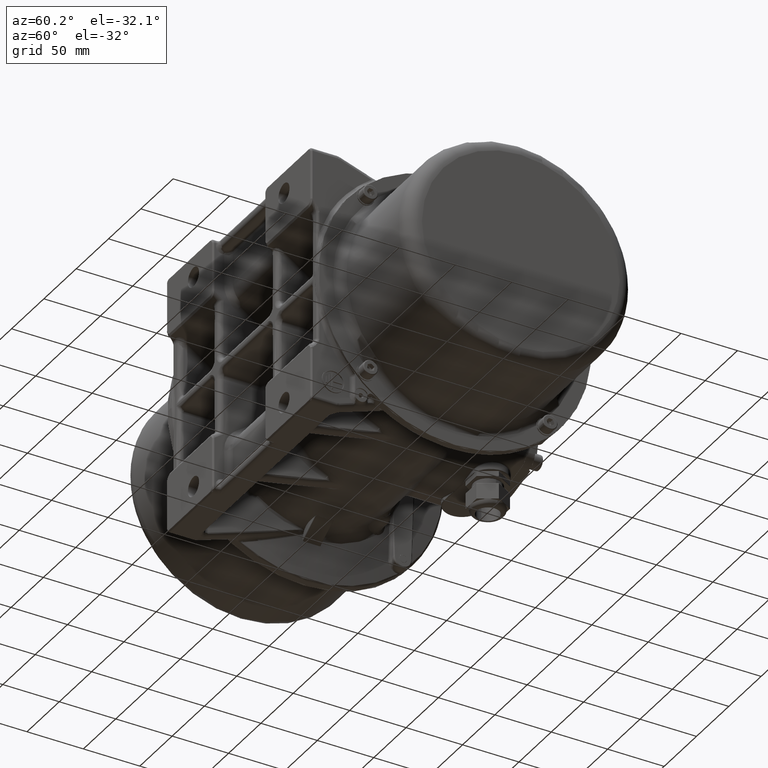
[diagram: clean part render]
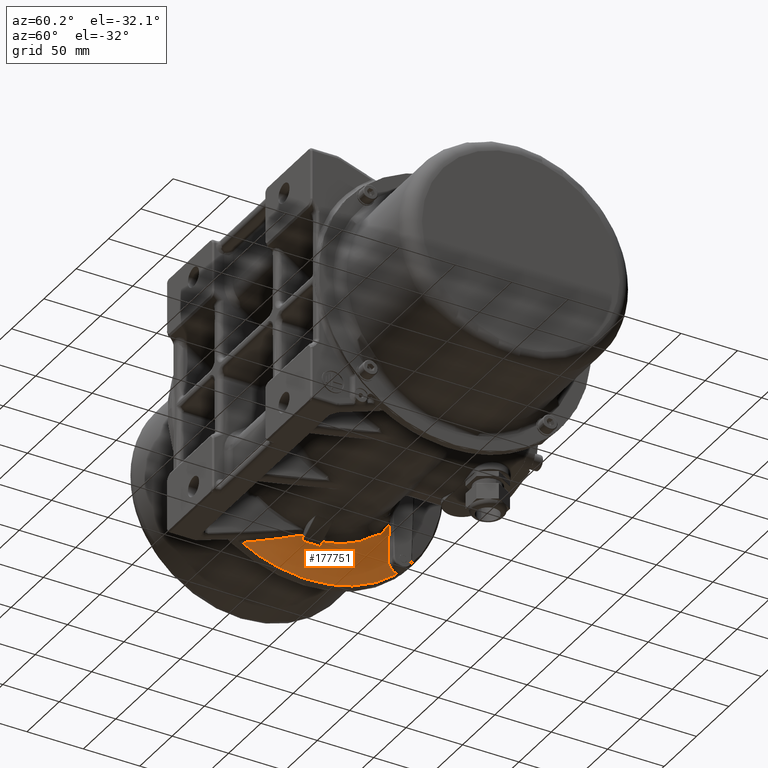
[diagram: same view with one face highlighted and labeled with its STEP entity id]
A machine part, auxiliary view. The second image highlights one B-rep face of the part: STEP entity #177751.
In plain terms, the highlighted face is a freeform B-spline surface patch.
Its self-contained STEP definition (entity closure, byte-faithful):
#8336 = EDGE_LOOP ( 'NONE', ( #71636, #71638, #71641, #71643, #71645, #71647, #71650, #71652, #71655, #71657, #71659, #71661, #71663, #71664, #71667 ) ) ;
#10796 = CARTESIAN_POINT ( 'NONE',  ( -112.7194616825309900, 105.4357422159372000, -79.63656476125009900 ) ) ;
#10804 = CARTESIAN_POINT ( 'NONE',  ( -110.3276151170406100, 104.7622992244428000, -61.27289267360679800 ) ) ;
#10806 = CARTESIAN_POINT ( 'NONE',  ( -109.6903733673840100, 44.20656026137489600, -88.03486446176150100 ) ) ;
#10808 = CARTESIAN_POINT ( 'NONE',  ( -109.9204243931004000, 43.10681717473394800, -89.43783259123048900 ) ) ;
#10810 = CARTESIAN_POINT ( 'NONE',  ( -109.9204417613056000, 29.10952711054559900, -89.43782953803429300 ) ) ;
#10812 = CARTESIAN_POINT ( 'NONE',  ( -109.6903895171706000, 28.00976313468945000, -88.03486141657029400 ) ) ;
#10814 = CARTESIAN_POINT ( 'NONE',  ( -109.2243373458650100, 26.06442259026220000, -85.17337425702939400 ) ) ;
#10816 = CARTESIAN_POINT ( 'NONE',  ( -115.1307563801526000, -22.65200093960800100, -103.7800634287924000 ) ) ;
#10820 = CARTESIAN_POINT ( 'NONE',  ( -113.3124307713246000, -9.157777201190150200, -99.09924855988209900 ) ) ;
#10836 = CARTESIAN_POINT ( 'NONE',  ( -109.2243217054904000, 104.6155208510088000, -51.59551474387139800 ) ) ;
#41219 = B_SPLINE_SURFACE_WITH_KNOTS ( 'NONE', 3, 3, ( 
 ( #155608, #155607, #155402, #155609 ),
 ( #155610, #155611, #155612, #155613 ),
 ( #155614, #155615, #155616, #155617 ),
 ( #155618, #155619, #155620, #155621 ),
 ( #155622, #155623, #155624, #155625 ),
 ( #155626, #155627, #155628, #155629 ),
 ( #155630, #155631, #155632, #155633 ),
 ( #155634, #155635, #155636, #155637 ),
 ( #155638, #155639, #155640, #155641 ),
 ( #155642, #155643, #155644, #155645 ),
 ( #155646, #155647, #155648, #155649 ) ),
 .UNSPECIFIED., .F., .F., .F.,
 ( 4, 1, 1, 1, 1, 1, 1, 1, 4 ),
 ( 4, 4 ),
 ( 0.0000000000000000000, 18.43374009221859900, 36.86748018443719800, 55.30122027665580500, 73.73496036887439700, 92.16870046109301000, 110.6024405533116000, 129.0361806455301800, 147.4699207377489900 ),
 ( 0.0000000000000000000, 34.01372305161260100 ),
 .UNSPECIFIED. ) ;
#43606 = VERTEX_POINT ( 'NONE', #117850 ) ;
#43607 = VERTEX_POINT ( 'NONE', #117851 ) ;
#43618 = VERTEX_POINT ( 'NONE', #117862 ) ;
#43623 = VERTEX_POINT ( 'NONE', #117867 ) ;
#62807 = EDGE_CURVE ( 'NONE', #174095, #43618, #102348, .T. ) ;
#62812 = EDGE_CURVE ( 'NONE', #114705, #174087, #102373, .T. ) ;
#62814 = EDGE_CURVE ( 'NONE', #43606, #174092, #102383, .T. ) ;
#62815 = EDGE_CURVE ( 'NONE', #174087, #174091, #102388, .T. ) ;
#62818 = EDGE_CURVE ( 'NONE', #43623, #43607, #102403, .T. ) ;
#62820 = EDGE_CURVE ( 'NONE', #43607, #43606, #102413, .T. ) ;
#62823 = EDGE_CURVE ( 'NONE', #174092, #174093, #102428, .T. ) ;
#62824 = EDGE_CURVE ( 'NONE', #174094, #174095, #102433, .T. ) ;
#62825 = EDGE_CURVE ( 'NONE', #174093, #174094, #102438, .T. ) ;
#62826 = EDGE_CURVE ( 'NONE', #174099, #174097, #102443, .T. ) ;
#62829 = EDGE_CURVE ( 'NONE', #43618, #174096, #102458, .T. ) ;
#62848 = EDGE_CURVE ( 'NONE', #174107, #43623, #102537, .T. ) ;
#62853 = EDGE_CURVE ( 'NONE', #174091, #174107, #102557, .T. ) ;
#71636 = ORIENTED_EDGE ( 'NONE', *, *, #62826, .T. ) ;
#71638 = ORIENTED_EDGE ( 'NONE', *, *, #72324, .F. ) ;
#71641 = ORIENTED_EDGE ( 'NONE', *, *, #62812, .T. ) ;
#71643 = ORIENTED_EDGE ( 'NONE', *, *, #62815, .T. ) ;
#71645 = ORIENTED_EDGE ( 'NONE', *, *, #62853, .T. ) ;
#71647 = ORIENTED_EDGE ( 'NONE', *, *, #62848, .T. ) ;
#71650 = ORIENTED_EDGE ( 'NONE', *, *, #62818, .T. ) ;
#71652 = ORIENTED_EDGE ( 'NONE', *, *, #62820, .T. ) ;
#71655 = ORIENTED_EDGE ( 'NONE', *, *, #62814, .T. ) ;
#71657 = ORIENTED_EDGE ( 'NONE', *, *, #62823, .T. ) ;
#71659 = ORIENTED_EDGE ( 'NONE', *, *, #62825, .T. ) ;
#71661 = ORIENTED_EDGE ( 'NONE', *, *, #62824, .T. ) ;
#71663 = ORIENTED_EDGE ( 'NONE', *, *, #62807, .T. ) ;
#71664 = ORIENTED_EDGE ( 'NONE', *, *, #62829, .T. ) ;
#71667 = ORIENTED_EDGE ( 'NONE', *, *, #72270, .T. ) ;
#72270 = EDGE_CURVE ( 'NONE', #174096, #174099, #116672, .T. ) ;
#72324 = EDGE_CURVE ( 'NONE', #114705, #174097, #116802, .T. ) ;
#102348 = B_SPLINE_CURVE_WITH_KNOTS ( 'NONE', 3,
 ( #107655, #111609, #111611, #111613 ),
 .UNSPECIFIED., .F., .F.,
 ( 4, 4 ),
 ( 0.0000000000000000000, 1.000000000000000000 ),
 .UNSPECIFIED. ) ;
#102373 = B_SPLINE_CURVE_WITH_KNOTS ( 'NONE', 3,
 ( #111654, #111673, #111675, #111677, #111679, #111681, #111683, #111685, #111687, #111689, #111691, #111693, #111695, #111697, #111699, #111701, #111703, #111704, #111706, #111708, #111710, #111712, #111714, #111716, #111718, #111720, #111722, #111724, #111726, #111728, #111730, #111732, #111734, #111736, #111738, #111740, #111742, #111744, #111746, #111748, #111750, #111752, #111754, #111756 ),
 .UNSPECIFIED., .F., .F.,
 ( 4, 2, 2, 2, 2, 2, 2, 2, 1, 2, 2, 2, 1, 2, 2, 2, 1, 2, 2, 2, 1, 2, 2, 4 ),
 ( 0.0000000000000000000, 0.1250000000000016100, 0.1875000000000025300, 0.2500000000000034400, 0.3125000000000043900, 0.3437500000000030000, 0.3750000000000016100, 0.4374999999999988300, 0.4687499999999981100, 0.4843749999999986100, 0.4999999999999991700, 0.5625000000000026600, 0.5937500000000034400, 0.6093750000000037700, 0.6250000000000040000, 0.6875000000000055500, 0.7187500000000053300, 0.7343750000000052200, 0.7500000000000051100, 0.8125000000000001100, 0.8437499999999976700, 0.8593749999999966700, 0.8749999999999955600, 1.000000000000000000 ),
 .UNSPECIFIED. ) ;
#102383 = B_SPLINE_CURVE_WITH_KNOTS ( 'NONE', 3,
 ( #111671, #111775, #111777, #111779 ),
 .UNSPECIFIED., .F., .F.,
 ( 4, 4 ),
 ( 0.0000000000000000000, 1.000000000000000000 ),
 .UNSPECIFIED. ) ;
#102388 = B_SPLINE_CURVE_WITH_KNOTS ( 'NONE', 3,
 ( #111771, #111784, #111786, #111788 ),
 .UNSPECIFIED., .F., .F.,
 ( 4, 4 ),
 ( 0.0000000000000000000, 1.000000000000000000 ),
 .UNSPECIFIED. ) ;
#102403 = B_SPLINE_CURVE_WITH_KNOTS ( 'NONE', 3,
 ( #111791, #111844, #111846, #111848, #111850, #111852, #111854, #111856, #111858, #111860, #111862, #111864, #111866, #111868 ),
 .UNSPECIFIED., .F., .F.,
 ( 4, 2, 2, 2, 2, 2, 4 ),
 ( 0.0000000000000000000, 0.1249999999999987200, 0.2499999999999974500, 0.4999999999999948900, 0.6249999999999962300, 0.7499999999999964500, 1.000000000000000000 ),
 .UNSPECIFIED. ) ;
#102413 = B_SPLINE_CURVE_WITH_KNOTS ( 'NONE', 3,
 ( #111870, #111889, #111891, #111893, #111895, #111897, #111899, #111901, #111903, #111905 ),
 .UNSPECIFIED., .F., .F.,
 ( 4, 2, 2, 2, 4 ),
 ( 0.0000000000000000000, 0.2500000000000000000, 0.5000000000000000000, 0.7500000000000000000, 1.000000000000000000 ),
 .UNSPECIFIED. ) ;
#102428 = B_SPLINE_CURVE_WITH_KNOTS ( 'NONE', 3,
 ( #111885, #111959, #111961, #111963, #111965, #111967, #111969, #111971, #111973, #111975, #111977, #111979, #111981, #111983, #111985, #111987, #111989, #111991, #111993, #111995, #111998, #112000 ),
 .UNSPECIFIED., .F., .F.,
 ( 4, 1, 1, 2, 2, 1, 1, 2, 2, 1, 1, 2, 2, 4 ),
 ( 0.0000000000000000000, 0.1250000000000604000, 0.1875000000000898700, 0.2187500000000937600, 0.2500000000000976400, 0.3750000000001115800, 0.4375000000001148000, 0.4687500000001071900, 0.5000000000000995900, 0.6250000000000614000, 0.6875000000000507400, 0.7187500000000486300, 0.7500000000000465200, 1.000000000000000000 ),
 .UNSPECIFIED. ) ;
#102433 = B_SPLINE_CURVE_WITH_KNOTS ( 'NONE', 3,
 ( #111957, #112005, #112007, #112009, #112011, #112013, #112015, #112017, #112019, #112021, #112023, #112025, #112027, #112029, #112031, #112033, #112035, #112037, #112039, #112041, #112043, #112045 ),
 .UNSPECIFIED., .F., .F.,
 ( 4, 1, 1, 2, 2, 1, 1, 2, 2, 1, 1, 2, 2, 4 ),
 ( 0.0000000000000000000, 0.1250000000000066300, 0.1875000000000070800, 0.2187500000000132100, 0.2500000000000193700, 0.3750000000000360800, 0.4375000000000378600, 0.4687500000000465200, 0.5000000000000551800, 0.6250000000000808200, 0.6875000000000842700, 0.7187500000000843800, 0.7500000000000844900, 1.000000000000000000 ),
 .UNSPECIFIED. ) ;
#102438 = B_SPLINE_CURVE_WITH_KNOTS ( 'NONE', 3,
 ( #112003, #112050, #112052, #112054, #112056, #112058 ),
 .UNSPECIFIED., .F., .F.,
 ( 4, 2, 4 ),
 ( 0.0000000000000000000, 0.5000000000000000000, 1.000000000000000000 ),
 .UNSPECIFIED. ) ;
#102443 = B_SPLINE_CURVE_WITH_KNOTS ( 'NONE', 3,
 ( #112048, #112062, #112064, #112066 ),
 .UNSPECIFIED., .F., .F.,
 ( 4, 4 ),
 ( 0.0000000000000000000, 1.000000000000000000 ),
 .UNSPECIFIED. ) ;
#102458 = B_SPLINE_CURVE_WITH_KNOTS ( 'NONE', 3,
 ( #112068, #112100, #112102, #112104 ),
 .UNSPECIFIED., .F., .F.,
 ( 4, 4 ),
 ( 0.0000000000000000000, 1.000000000000000000 ),
 .UNSPECIFIED. ) ;
#102537 = B_SPLINE_CURVE_WITH_KNOTS ( 'NONE', 3,
 ( #112404, #112483, #112485, #112486 ),
 .UNSPECIFIED., .F., .F.,
 ( 4, 4 ),
 ( 0.0000000000000000000, 1.000000000000000000 ),
 .UNSPECIFIED. ) ;
#102557 = B_SPLINE_CURVE_WITH_KNOTS ( 'NONE', 3,
 ( #112505, #112564, #112566, #112568 ),
 .UNSPECIFIED., .F., .F.,
 ( 4, 4 ),
 ( 0.0000000000000000000, 1.000000000000000000 ),
 .UNSPECIFIED. ) ;
#107655 = CARTESIAN_POINT ( 'NONE',  ( -109.6903895171706000, 28.00976313468945000, -88.03486141657029400 ) ) ;
#111609 = CARTESIAN_POINT ( 'NONE',  ( -109.5326970667470800, 28.00977962977391700, -87.13662060797014400 ) ) ;
#111611 = CARTESIAN_POINT ( 'NONE',  ( -109.3773488435953100, 28.00979594240626400, -86.25176959623043200 ) ) ;
#111613 = CARTESIAN_POINT ( 'NONE',  ( -109.2243389914833900, 28.00979520543329900, -85.38030782488459600 ) ) ;
#111654 = CARTESIAN_POINT ( 'NONE',  ( -115.1307670766340000, 115.1716342465070100, -89.28624469489230400 ) ) ;
#111671 = CARTESIAN_POINT ( 'NONE',  ( -109.2243373262034000, 44.20653206218715100, -85.38030851976711200 ) ) ;
#111673 = CARTESIAN_POINT ( 'NONE',  ( -115.0543338041551600, 114.5375186835002200, -89.26907996596251800 ) ) ;
#111675 = CARTESIAN_POINT ( 'NONE',  ( -114.9717022508079900, 113.9132152128631800, -89.19239615711720100 ) ) ;
#111677 = CARTESIAN_POINT ( 'NONE',  ( -114.8371789052424500, 112.9841626626478500, -88.98802146651704000 ) ) ;
#111679 = CARTESIAN_POINT ( 'NONE',  ( -114.7911120715618400, 112.6796030148885100, -88.90565406304462200 ) ) ;
#111681 = CARTESIAN_POINT ( 'NONE',  ( -114.6965269672163000, 112.0807371123301000, -88.71287943003825700 ) ) ;
#111683 = CARTESIAN_POINT ( 'NONE',  ( -114.6483577862361000, 111.7884604479650900, -88.60334385496446400 ) ) ;
#111685 = CARTESIAN_POINT ( 'NONE',  ( -114.5481716285526900, 111.2059731222778800, -88.35318780030681300 ) ) ;
#111687 = CARTESIAN_POINT ( 'NONE',  ( -114.4973138199448100, 110.9227175203737400, -88.21527401197582200 ) ) ;
#111689 = CARTESIAN_POINT ( 'NONE',  ( -114.4198800123834400, 110.5096556790611400, -87.98955362154495700 ) ) ;
#111691 = CARTESIAN_POINT ( 'NONE',  ( -114.3938775607547700, 110.3739381188717900, -87.91117168870482600 ) ) ;
#111693 = CARTESIAN_POINT ( 'NONE',  ( -114.3414902926143400, 110.1064092743448100, -87.74818935145718500 ) ) ;
#111695 = CARTESIAN_POINT ( 'NONE',  ( -114.3154189968065100, 109.9761301631355400, -87.66462329307432800 ) ) ;
#111697 = CARTESIAN_POINT ( 'NONE',  ( -114.2347504378344900, 109.5819031333502500, -87.39848688438165400 ) ) ;
#111699 = CARTESIAN_POINT ( 'NONE',  ( -114.1807032454458700, 109.3295757145253200, -87.21011686636961700 ) ) ;
#111701 = CARTESIAN_POINT ( 'NONE',  ( -114.0992302272519500, 108.9665125175866100, -86.91156504542239200 ) ) ;
#111703 = CARTESIAN_POINT ( 'NONE',  ( -114.0583931607522900, 108.7888372457473300, -86.75828941208430900 ) ) ;
#111704 = CARTESIAN_POINT ( 'NONE',  ( -114.0174052581485300, 108.6168828832197000, -86.59908862246635400 ) ) ;
#111706 = CARTESIAN_POINT ( 'NONE',  ( -113.9900464706117400, 108.5035104944758500, -86.49164601513658100 ) ) ;
#111708 = CARTESIAN_POINT ( 'NONE',  ( -113.9765624336552200, 108.4483135954952400, -86.43812151565357700 ) ) ;
#111710 = CARTESIAN_POINT ( 'NONE',  ( -113.9069372872475300, 108.1668963435388100, -86.15873521546602400 ) ) ;
#111712 = CARTESIAN_POINT ( 'NONE',  ( -113.8514733344767600, 107.9541966488552300, -85.92655722920858400 ) ) ;
#111714 = CARTESIAN_POINT ( 'NONE',  ( -113.7686316518538900, 107.6533832838812300, -85.56566729521191000 ) ) ;
#111716 = CARTESIAN_POINT ( 'NONE',  ( -113.7272993721757600, 107.5075352235966200, -85.38206584735193900 ) ) ;
#111718 = CARTESIAN_POINT ( 'NONE',  ( -113.6860999349476200, 107.3684435628755700, -85.19379441218608000 ) ) ;
#111720 = CARTESIAN_POINT ( 'NONE',  ( -113.6586631640066300, 107.2772079016303800, -85.06724909214405300 ) ) ;
#111722 = CARTESIAN_POINT ( 'NONE',  ( -113.6452076989351800, 107.2331361611957700, -85.00462661320825900 ) ) ;
#111724 = CARTESIAN_POINT ( 'NONE',  ( -113.5755225736706300, 107.0084840986421100, -84.67729649028791500 ) ) ;
#111726 = CARTESIAN_POINT ( 'NONE',  ( -113.5205231735914900, 106.8426624556785100, -84.40932494905001700 ) ) ;
#111728 = CARTESIAN_POINT ( 'NONE',  ( -113.4391471236714600, 106.6143141540906600, -83.99849219742425500 ) ) ;
#111730 = CARTESIAN_POINT ( 'NONE',  ( -113.3987398612610300, 106.5052359012978500, -83.79085604194986600 ) ) ;
#111732 = CARTESIAN_POINT ( 'NONE',  ( -113.3587537426751600, 106.4037129222900300, -83.57993558764681600 ) ) ;
#111734 = CARTESIAN_POINT ( 'NONE',  ( -113.3321899178011700, 106.3376999645803100, -83.43859659054845700 ) ) ;
#111736 = CARTESIAN_POINT ( 'NONE',  ( -113.3192001581314500, 106.3061111058804900, -83.36889264387006900 ) ) ;
#111738 = CARTESIAN_POINT ( 'NONE',  ( -113.2520317384841200, 106.1464835127621700, -83.00528832156130900 ) ) ;
#111740 = CARTESIAN_POINT ( 'NONE',  ( -113.1995013380694000, 106.0335263901469300, -82.71077315777721100 ) ) ;
#111742 = CARTESIAN_POINT ( 'NONE',  ( -113.1225122404018300, 105.8857544568372900, -82.26370135169017300 ) ) ;
#111744 = CARTESIAN_POINT ( 'NONE',  ( -113.0844693173066700, 105.8172845404160400, -82.03883965537494300 ) ) ;
#111746 = CARTESIAN_POINT ( 'NONE',  ( -113.0471038328194900, 105.7568546699029900, -81.81200790744701100 ) ) ;
#111748 = CARTESIAN_POINT ( 'NONE',  ( -113.0223440517409600, 105.7183455023880200, -81.66035039476275900 ) ) ;
#111750 = CARTESIAN_POINT ( 'NONE',  ( -113.0102455071761700, 105.7002742051151800, -81.58558861377736100 ) ) ;
#111752 = CARTESIAN_POINT ( 'NONE',  ( -112.8983266943765100, 105.5402867779762100, -80.88764267432389900 ) ) ;
#111754 = CARTESIAN_POINT ( 'NONE',  ( -112.8055415005799800, 105.4586662746923100, -80.26391766157954100 ) ) ;
#111756 = CARTESIAN_POINT ( 'NONE',  ( -112.7194616825309900, 105.4357422159372000, -79.63656476125009900 ) ) ;
#111771 = CARTESIAN_POINT ( 'NONE',  ( -112.7194616825309900, 105.4357422159372000, -79.63656476125009900 ) ) ;
#111775 = CARTESIAN_POINT ( 'NONE',  ( -109.3773301192728700, 44.20654841509743000, -86.25177390811303700 ) ) ;
#111777 = CARTESIAN_POINT ( 'NONE',  ( -109.5326771850462100, 44.20656474348731300, -87.13662512859488600 ) ) ;
#111779 = CARTESIAN_POINT ( 'NONE',  ( -109.6903733673840100, 44.20656026137489600, -88.03486446176150100 ) ) ;
#111784 = CARTESIAN_POINT ( 'NONE',  ( -111.8319385317275400, 105.1994894695004800, -73.16880141617534200 ) ) ;
#111786 = CARTESIAN_POINT ( 'NONE',  ( -111.0346848990285900, 104.9751195970599300, -67.05588791511385700 ) ) ;
#111788 = CARTESIAN_POINT ( 'NONE',  ( -110.3276151170406100, 104.7622992244428000, -61.27289267360679800 ) ) ;
#111791 = CARTESIAN_POINT ( 'NONE',  ( -109.2243644234692000, 100.3861177287613900, -56.77786066698720200 ) ) ;
#111844 = CARTESIAN_POINT ( 'NONE',  ( -109.2594898071247200, 100.2603869196224200, -57.22069382600434300 ) ) ;
#111846 = CARTESIAN_POINT ( 'NONE',  ( -109.2903545500291400, 100.1069731903710200, -57.65420184036450000 ) ) ;
#111848 = CARTESIAN_POINT ( 'NONE',  ( -109.3436481903880100, 99.74540674008238700, -58.50055226535165800 ) ) ;
#111850 = CARTESIAN_POINT ( 'NONE',  ( -109.3661290743544500, 99.53658247034667300, -58.91454042758746800 ) ) ;
#111852 = CARTESIAN_POINT ( 'NONE',  ( -109.4206060390068100, 98.83320665119143200, -60.11542058959557300 ) ) ;
#111854 = CARTESIAN_POINT ( 'NONE',  ( -109.4387575857106800, 98.26753253972619000, -60.84783150147137600 ) ) ;
#111856 = CARTESIAN_POINT ( 'NONE',  ( -109.4387352735308700, 97.28390115788437200, -61.83147627004824900 ) ) ;
#111858 = CARTESIAN_POINT ( 'NONE',  ( -109.4341872472183800, 96.93689737620272200, -62.13682461597191100 ) ) ;
#111860 = CARTESIAN_POINT ( 'NONE',  ( -109.4160100167552100, 96.20664472636566700, -62.70081359778188800 ) ) ;
#111862 = CARTESIAN_POINT ( 'NONE',  ( -109.4024312517962200, 95.82450740274806800, -62.95880326861619400 ) ) ;
#111864 = CARTESIAN_POINT ( 'NONE',  ( -109.3477705550112200, 94.62008387162356400, -63.66429858313410500 ) ) ;
#111866 = CARTESIAN_POINT ( 'NONE',  ( -109.2944733345104400, 93.77167653272036300, -64.02656076104550200 ) ) ;
#111868 = CARTESIAN_POINT ( 'NONE',  ( -109.2243205317637900, 92.88605484777180300, -64.27797067794139700 ) ) ;
#111870 = CARTESIAN_POINT ( 'NONE',  ( -109.2243205317637900, 92.88605484777180300, -64.27797067794139700 ) ) ;
#111885 = CARTESIAN_POINT ( 'NONE',  ( -109.6903733673840100, 44.20656026137489600, -88.03486446176150100 ) ) ;
#111889 = CARTESIAN_POINT ( 'NONE',  ( -109.2243221800679400, 89.51637363066507200, -67.25459174276454600 ) ) ;
#111891 = CARTESIAN_POINT ( 'NONE',  ( -109.2243250021039700, 85.91370141515959300, -69.96442330838996800 ) ) ;
#111893 = CARTESIAN_POINT ( 'NONE',  ( -109.2243306461758900, 78.32739676322654500, -74.78706989589663600 ) ) ;
#111895 = CARTESIAN_POINT ( 'NONE',  ( -109.2243334682119200, 74.34371263467194500, -76.89984520545861800 ) ) ;
#111897 = CARTESIAN_POINT ( 'NONE',  ( -109.2243391122839100, 66.09509066837941300, -80.47621061524535000 ) ) ;
#111899 = CARTESIAN_POINT ( 'NONE',  ( -109.2243419343198400, 61.82979629254696600, -81.93870234511703600 ) ) ;
#111901 = CARTESIAN_POINT ( 'NONE',  ( -109.2243475783918100, 53.12316998093604800, -84.17904562775173400 ) ) ;
#111903 = CARTESIAN_POINT ( 'NONE',  ( -109.2243504004277400, 48.68161275759055700, -84.95570304577864800 ) ) ;
#111905 = CARTESIAN_POINT ( 'NONE',  ( -109.2243373262034000, 44.20653206218715100, -85.38030851976711200 ) ) ;
#111957 = CARTESIAN_POINT ( 'NONE',  ( -109.9204417613056000, 29.10952711054559900, -89.43782953803429300 ) ) ;
#111959 = CARTESIAN_POINT ( 'NONE',  ( -109.7050168286499500, 44.20657796696879400, -88.11813806982409900 ) ) ;
#111961 = CARTESIAN_POINT ( 'NONE',  ( -109.7264750562682100, 44.19828591009255800, -88.24110994556743000 ) ) ;
#111963 = CARTESIAN_POINT ( 'NONE',  ( -109.7506777302144300, 44.17399709650580100, -88.38116376925098900 ) ) ;
#111965 = CARTESIAN_POINT ( 'NONE',  ( -109.7608720351323500, 44.16044481616289400, -88.44045287960599900 ) ) ;
#111967 = CARTESIAN_POINT ( 'NONE',  ( -109.7676286229376100, 44.15071035970444100, -88.47981552767940600 ) ) ;
#111969 = CARTESIAN_POINT ( 'NONE',  ( -109.7708022949029500, 44.14580151540474900, -88.49833472999601700 ) ) ;
#111971 = CARTESIAN_POINT ( 'NONE',  ( -109.7884197580515500, 44.11642345200028400, -88.60132539677385900 ) ) ;
#111973 = CARTESIAN_POINT ( 'NONE',  ( -109.8083427444436900, 44.07309699290599500, -88.71868756270014000 ) ) ;
#111975 = CARTESIAN_POINT ( 'NONE',  ( -109.8294547821422100, 44.00836398974842500, -88.84467138763238800 ) ) ;
#111977 = CARTESIAN_POINT ( 'NONE',  ( -109.8380460597788600, 43.97757750806515300, -88.89631446777097800 ) ) ;
#111979 = CARTESIAN_POINT ( 'NONE',  ( -109.8436720807544700, 43.95637640739424500, -88.93022026418543600 ) ) ;
#111981 = CARTESIAN_POINT ( 'NONE',  ( -109.8461543426979400, 43.94660201371782200, -88.94521512863417500 ) ) ;
#111983 = CARTESIAN_POINT ( 'NONE',  ( -109.8611119069923200, 43.88439174837262200, -89.03584604464843700 ) ) ;
#111985 = CARTESIAN_POINT ( 'NONE',  ( -109.8769077158623900, 43.80283073535489500, -89.13287347404397600 ) ) ;
#111987 = CARTESIAN_POINT ( 'NONE',  ( -109.8915679400484600, 43.69565004038919700, -89.22547877548440500 ) ) ;
#111989 = CARTESIAN_POINT ( 'NONE',  ( -109.8970434176647900, 43.64714836340738900, -89.26074579113240800 ) ) ;
#111991 = CARTESIAN_POINT ( 'NONE',  ( -109.9005142970520700, 43.61424463571258800, -89.28327377076504900 ) ) ;
#111993 = CARTESIAN_POINT ( 'NONE',  ( -109.9020054762430500, 43.59919859231969500, -89.29302506282807900 ) ) ;
#111995 = CARTESIAN_POINT ( 'NONE',  ( -109.9174003511909500, 43.43079976384951400, -89.39473560137923900 ) ) ;
#111998 = CARTESIAN_POINT ( 'NONE',  ( -109.9229738447519500, 43.27266812619633600, -89.43927962041652800 ) ) ;
#112000 = CARTESIAN_POINT ( 'NONE',  ( -109.9204243931004000, 43.10681717473394800, -89.43783259123048900 ) ) ;
#112003 = CARTESIAN_POINT ( 'NONE',  ( -109.9204243931004000, 43.10681717473394800, -89.43783259123048900 ) ) ;
#112005 = CARTESIAN_POINT ( 'NONE',  ( -109.9217388581232100, 29.02661819268365300, -89.43854893470189900 ) ) ;
#112007 = CARTESIAN_POINT ( 'NONE',  ( -109.9205988944501200, 28.90513500189371900, -89.42238851730111500 ) ) ;
#112009 = CARTESIAN_POINT ( 'NONE',  ( -109.9139464896848500, 28.76868993759063300, -89.37339380157040100 ) ) ;
#112011 = CARTESIAN_POINT ( 'NONE',  ( -109.9099549346826200, 28.71137096314729600, -89.34594175933665400 ) ) ;
#112013 = CARTESIAN_POINT ( 'NONE',  ( -109.9070404481502400, 28.67341826666877200, -89.32620660107654900 ) ) ;
#112015 = CARTESIAN_POINT ( 'NONE',  ( -109.9053010437565500, 28.65287142097815800, -89.31459528573708400 ) ) ;
#112017 = CARTESIAN_POINT ( 'NONE',  ( -109.8975247590827700, 28.56779860670431100, -89.26322382795116500 ) ) ;
#112019 = CARTESIAN_POINT ( 'NONE',  ( -109.8860371842644800, 28.47251079164053400, -89.18974936639506300 ) ) ;
#112021 = CARTESIAN_POINT ( 'NONE',  ( -109.8688619555261900, 28.37333669920193600, -89.08340506541975400 ) ) ;
#112023 = CARTESIAN_POINT ( 'NONE',  ( -109.8606926307561800, 28.33341106030846700, -89.03341667813091900 ) ) ;
#112025 = CARTESIAN_POINT ( 'NONE',  ( -109.8550667448087000, 28.30736747023682700, -88.99911135633954000 ) ) ;
#112027 = CARTESIAN_POINT ( 'NONE',  ( -109.8518817478089200, 28.29345852478264300, -88.97975888709311200 ) ) ;
#112029 = CARTESIAN_POINT ( 'NONE',  ( -109.8383297823138200, 28.23708824144927100, -88.89764853883266900 ) ) ;
#112031 = CARTESIAN_POINT ( 'NONE',  ( -109.8208457336504900, 28.17755980549395600, -88.79281031399298700 ) ) ;
#112033 = CARTESIAN_POINT ( 'NONE',  ( -109.7983097192556600, 28.12227744583445600, -88.65952084131095000 ) ) ;
#112035 = CARTESIAN_POINT ( 'NONE',  ( -109.7881932935962100, 28.10161489912587000, -88.60004894537749500 ) ) ;
#112037 = CARTESIAN_POINT ( 'NONE',  ( -109.7813472023174500, 28.08851245208456100, -88.55987974902954800 ) ) ;
#112039 = CARTESIAN_POINT ( 'NONE',  ( -109.7776864269475300, 28.08198592337066300, -88.53844237157748900 ) ) ;
#112041 = CARTESIAN_POINT ( 'NONE',  ( -109.7476441824405200, 28.03187912838794600, -88.36282095466639000 ) ) ;
#112043 = CARTESIAN_POINT ( 'NONE',  ( -109.7196665971146000, 28.00976928923211100, -88.20144628190763600 ) ) ;
#112045 = CARTESIAN_POINT ( 'NONE',  ( -109.6903895171706000, 28.00976313468945000, -88.03486141657029400 ) ) ;
#112048 = CARTESIAN_POINT ( 'NONE',  ( -113.3124307713246000, -9.157777201190150200, -99.09924855988209900 ) ) ;
#112050 = CARTESIAN_POINT ( 'NONE',  ( -109.8846276766802400, 40.76931347624019300, -89.41713586411131600 ) ) ;
#112052 = CARTESIAN_POINT ( 'NONE',  ( -109.8667346415832100, 38.44191874341932200, -89.40687000666748900 ) ) ;
#112054 = CARTESIAN_POINT ( 'NONE',  ( -109.8667801412639400, 33.77442624338816300, -89.40685899239682000 ) ) ;
#112056 = CARTESIAN_POINT ( 'NONE',  ( -109.8846847557900900, 31.44704768513478800, -89.41712562434005900 ) ) ;
#112058 = CARTESIAN_POINT ( 'NONE',  ( -109.9204417613056000, 29.10952711054559900, -89.43782953803429300 ) ) ;
#112062 = CARTESIAN_POINT ( 'NONE',  ( -113.8716878051450300, -13.49561780733422000, -100.6044546073114800 ) ) ;
#112064 = CARTESIAN_POINT ( 'NONE',  ( -114.4777713078178000, -17.99067422371516400, -102.1637610184234000 ) ) ;
#112066 = CARTESIAN_POINT ( 'NONE',  ( -115.1307563801526000, -22.65200093960800100, -103.7800634287924000 ) ) ;
#112068 = CARTESIAN_POINT ( 'NONE',  ( -109.2243389914833900, 28.00979520543329900, -85.38030782488459600 ) ) ;
#112100 = CARTESIAN_POINT ( 'NONE',  ( -109.2243649783123500, 27.36058223620213100, -85.31871617695665600 ) ) ;
#112102 = CARTESIAN_POINT ( 'NONE',  ( -109.2243589822772100, 26.71206187347425500, -85.24973494769351100 ) ) ;
#112104 = CARTESIAN_POINT ( 'NONE',  ( -109.2243373458650100, 26.06442259026220000, -85.17337425702939400 ) ) ;
#112404 = CARTESIAN_POINT ( 'NONE',  ( -109.2243217054904000, 104.6155208510088000, -51.59551474387139800 ) ) ;
#112483 = CARTESIAN_POINT ( 'NONE',  ( -109.2243501841614400, 103.2751478063160000, -53.37576210345438500 ) ) ;
#112485 = CARTESIAN_POINT ( 'NONE',  ( -109.2243786628284600, 101.8635325712173300, -55.10518983580325900 ) ) ;
#112486 = CARTESIAN_POINT ( 'NONE',  ( -109.2243644234692000, 100.3861177287613900, -56.77786066698720200 ) ) ;
#112505 = CARTESIAN_POINT ( 'NONE',  ( -110.3276151170406100, 104.7622992244428000, -61.27289267360679800 ) ) ;
#112564 = CARTESIAN_POINT ( 'NONE',  ( -109.9279335621254200, 104.6419735943563400, -58.00313603034904000 ) ) ;
#112566 = CARTESIAN_POINT ( 'NONE',  ( -109.5601538718104300, 104.6005295830070000, -54.78155393306035800 ) ) ;
#112568 = CARTESIAN_POINT ( 'NONE',  ( -109.2243217054904000, 104.6155208510088000, -51.59551474387139800 ) ) ;
#113331 = CARTESIAN_POINT ( 'NONE',  ( -109.2243373458650100, 26.06442259026220000, -85.17337425702939400 ) ) ;
#113395 = CARTESIAN_POINT ( 'NONE',  ( -109.3639678103985300, 24.64489850044872200, -85.80334327322118800 ) ) ;
#113396 = CARTESIAN_POINT ( 'NONE',  ( -109.5090169499288900, 23.21009340398759600, -86.43113381227028900 ) ) ;
#113397 = CARTESIAN_POINT ( 'NONE',  ( -109.7347421322851100, 21.03344805055583700, -87.36982685047199500 ) ) ;
#113398 = CARTESIAN_POINT ( 'NONE',  ( -109.8496425917284800, 19.93901495960038500, -87.83843167130174800 ) ) ;
#113399 = CARTESIAN_POINT ( 'NONE',  ( -109.9872593972097400, 18.65116365095021000, -88.38393439374074500 ) ) ;
#113400 = CARTESIAN_POINT ( 'NONE',  ( -110.0569593673164900, 18.00444841224440800, -88.65639528412877700 ) ) ;
#113401 = CARTESIAN_POINT ( 'NONE',  ( -110.0920322442113200, 17.68038894407429100, -88.79255437108420800 ) ) ;
#113402 = CARTESIAN_POINT ( 'NONE',  ( -110.1071112397037300, 17.54135545183550000, -88.85089310542073800 ) ) ;
#113403 = CARTESIAN_POINT ( 'NONE',  ( -110.1171745172625500, 17.44863288061803500, -88.88978224041923700 ) ) ;
#113404 = CARTESIAN_POINT ( 'NONE',  ( -110.1224177278469700, 17.40035691799669900, -88.91002041813740700 ) ) ;
#113405 = CARTESIAN_POINT ( 'NONE',  ( -110.2820053259131300, 15.93195595985456400, -89.52533619346297700 ) ) ;
#113406 = CARTESIAN_POINT ( 'NONE',  ( -110.4420770793826700, 14.48944210377176300, -90.12171944141690000 ) ) ;
#113407 = CARTESIAN_POINT ( 'NONE',  ( -110.6901649244223500, 12.29623825666304000, -91.01553262735166100 ) ) ;
#113408 = CARTESIAN_POINT ( 'NONE',  ( -110.8162039006509900, 11.19228226535967400, -91.46224722355287900 ) ) ;
#113409 = CARTESIAN_POINT ( 'NONE',  ( -110.9667407169083000, 9.891175961312546500, -91.98299299128754600 ) ) ;
#113410 = CARTESIAN_POINT ( 'NONE',  ( -111.0428819610345100, 9.237300652266787500, -92.24324929937770900 ) ) ;
#113411 = CARTESIAN_POINT ( 'NONE',  ( -111.0811707920971500, 8.909528453993811300, -92.37334690106860100 ) ) ;
#113412 = CARTESIAN_POINT ( 'NONE',  ( -111.1003697598782300, 8.745433229317189500, -92.43838788635221700 ) ) ;
#113413 = CARTESIAN_POINT ( 'NONE',  ( -111.1086095786951100, 8.675061839966954100, -92.46626090049395000 ) ) ;
#113414 = CARTESIAN_POINT ( 'NONE',  ( -111.1141053889658400, 8.628137604784029700, -92.48484253139139400 ) ) ;
#113415 = CARTESIAN_POINT ( 'NONE',  ( -111.1169894470020400, 8.603519689117032200, -92.49458865711490300 ) ) ;
#113416 = CARTESIAN_POINT ( 'NONE',  ( -111.2870066205496600, 7.152636112128745600, -93.06885951771036500 ) ) ;
#113417 = CARTESIAN_POINT ( 'NONE',  ( -111.4595857744417500, 5.702494929810511900, -93.63484487328003100 ) ) ;
#113418 = CARTESIAN_POINT ( 'NONE',  ( -111.7262209490322200, 3.493526021142041600, -94.48364089876220400 ) ) ;
#113419 = CARTESIAN_POINT ( 'NONE',  ( -111.8163937478544300, 2.751577496834215700, -94.76653837745610100 ) ) ;
#113420 = CARTESIAN_POINT ( 'NONE',  ( -111.9535945570258400, 1.630075816780139900, -95.19072604693886300 ) ) ;
#113421 = CARTESIAN_POINT ( 'NONE',  ( -112.0226803643460600, 1.067181120577835900, -95.40278150706358000 ) ) ;
#113422 = CARTESIAN_POINT ( 'NONE',  ( -112.1041299276717600, 0.4066926843523878700, -95.65009322597504100 ) ) ;
#113423 = CARTESIAN_POINT ( 'NONE',  ( -112.1450670730308900, 0.07550087159954378700, -95.77372509734465200 ) ) ;
#113424 = CARTESIAN_POINT ( 'NONE',  ( -112.1655887366346700, -0.09033231693001059200, -95.83553473489888600 ) ) ;
#113425 = CARTESIAN_POINT ( 'NONE',  ( -112.1743951119485700, -0.1614545702139186000, -95.86202319767649300 ) ) ;
#113426 = CARTESIAN_POINT ( 'NONE',  ( -112.1802685569637400, -0.2088807183898738500, -95.87968186218633100 ) ) ;
#113427 = CARTESIAN_POINT ( 'NONE',  ( -112.1833730251275500, -0.2339432178116301100, -95.88901112208363000 ) ) ;
#113428 = CARTESIAN_POINT ( 'NONE',  ( -112.5410602338906900, -3.121043194059605500, -96.96344396993450200 ) ) ;
#113429 = CARTESIAN_POINT ( 'NONE',  ( -112.9165076247747400, -6.086053027029948700, -98.03337035983254600 ) ) ;
#113430 = CARTESIAN_POINT ( 'NONE',  ( -113.3124307713246000, -9.157777201190150200, -99.09924855988209900 ) ) ;
#114705 = VERTEX_POINT ( 'NONE', #135785 ) ;
#116672 = B_SPLINE_CURVE_WITH_KNOTS ( 'NONE', 3,
 ( #113331, #113395, #113396, #113397, #113398, #113399, #113400, #113401, #113402, #113403, #113404, #113405, #113406, #113407, #113408, #113409, #113410, #113411, #113412, #113413, #113414, #113415, #113416, #113417, #113418, #113419, #113420, #113421, #113422, #113423, #113424, #113425, #113426, #113427, #113428, #113429, #113430 ),
 .UNSPECIFIED., .F., .F.,
 ( 4, 2, 1, 1, 1, 1, 2, 2, 2, 1, 1, 1, 1, 1, 2, 2, 2, 2, 1, 1, 1, 1, 2, 2, 4 ),
 ( 0.0000000000000000000, 0.1249999999999991700, 0.1874999999999987000, 0.2187499999999983900, 0.2343749999999983300, 0.2421874999999981100, 0.2460937499999981700, 0.2499999999999982200, 0.3749999999999977200, 0.4374999999999976700, 0.4687499999999973900, 0.4843749999999969500, 0.4921874999999966700, 0.4960937499999964500, 0.4980468749999963900, 0.4999999999999963400, 0.6249999999999924500, 0.6874999999999905600, 0.7187499999999895600, 0.7343749999999887900, 0.7421874999999882300, 0.7460937499999882300, 0.7480468749999881200, 0.7499999999999880100, 1.000000000000000000 ),
 .UNSPECIFIED. ) ;
#116802 = B_SPLINE_CURVE_WITH_KNOTS ( 'NONE', 3,
 ( #120556, #120635, #120637, #120639, #120641, #120643, #120645, #120647, #120649, #120651, #120653, #120655, #120657, #120659, #120661, #120663, #120665, #120667 ),
 .UNSPECIFIED., .F., .F.,
 ( 4, 2, 2, 2, 2, 2, 2, 2, 4 ),
 ( 0.0000000000000000000, 0.1249999999999999200, 0.2499999999999998300, 0.3749999999999997800, 0.4999999999999997800, 0.6249999999999997800, 0.7499999999999997800, 0.8749999999999998900, 1.000000000000000000 ),
 .UNSPECIFIED. ) ;
#117850 = CARTESIAN_POINT ( 'NONE',  ( -109.2243373262034000, 44.20653206218715100, -85.38030851976711200 ) ) ;
#117851 = CARTESIAN_POINT ( 'NONE',  ( -109.2243205317637900, 92.88605484777180300, -64.27797067794139700 ) ) ;
#117862 = CARTESIAN_POINT ( 'NONE',  ( -109.2243389914833900, 28.00979520543329900, -85.38030782488459600 ) ) ;
#117867 = CARTESIAN_POINT ( 'NONE',  ( -109.2243644234692000, 100.3861177287613900, -56.77786066698720200 ) ) ;
#120556 = CARTESIAN_POINT ( 'NONE',  ( -115.1307670766340000, 115.1716342465070100, -89.28624469489230400 ) ) ;
#120635 = CARTESIAN_POINT ( 'NONE',  ( -115.1308128457956900, 110.5588160340969600, -93.37037668866945200 ) ) ;
#120637 = CARTESIAN_POINT ( 'NONE',  ( -115.1308111803094400, 105.6257429882905500, -97.10027129299061200 ) ) ;
#120639 = CARTESIAN_POINT ( 'NONE',  ( -115.1308079106999100, 95.24894459474752800, -103.7471891959788200 ) ) ;
#120641 = CARTESIAN_POINT ( 'NONE',  ( -115.1308062963270200, 89.80412082123812900, -106.6671491644899100 ) ) ;
#120643 = CARTESIAN_POINT ( 'NONE',  ( -115.1308030594678700, 78.52643855980646500, -111.6318830503245700 ) ) ;
#120645 = CARTESIAN_POINT ( 'NONE',  ( -115.1308014410869900, 72.69471121716321700, -113.6774661840155700 ) ) ;
#120647 = CARTESIAN_POINT ( 'NONE',  ( -115.1307982045842100, 60.78543365173072700, -116.8421223570016000 ) ) ;
#120649 = CARTESIAN_POINT ( 'NONE',  ( -115.1307965864433500, 54.70817720155799400, -117.9625643052189200 ) ) ;
#120651 = CARTESIAN_POINT ( 'NONE',  ( -115.1307933502942400, 42.45341543421319100, -119.2509766888140600 ) ) ;
#120653 = CARTESIAN_POINT ( 'NONE',  ( -115.1307917322947200, 36.27600858897459100, -119.4197792548938100 ) ) ;
#120655 = CARTESIAN_POINT ( 'NONE',  ( -115.1307884965266900, 23.96887976660357100, -118.8011349203043100 ) ) ;
#120657 = CARTESIAN_POINT ( 'NONE',  ( -115.1307868787541400, 17.83916024222845900, -118.0137728424851200 ) ) ;
#120659 = CARTESIAN_POINT ( 'NONE',  ( -115.1307836432965100, 5.775901706503335100, -115.5036049094851800 ) ) ;
#120661 = CARTESIAN_POINT ( 'NONE',  ( -115.1307820250801400, -0.1572394821356403700, -113.7802117479720500 ) ) ;
#120663 = CARTESIAN_POINT ( 'NONE',  ( -115.1307788177404200, -11.69094660460607700, -109.4364748126327100 ) ) ;
#120665 = CARTESIAN_POINT ( 'NONE',  ( -115.1307772311541100, -17.29260978844373400, -106.8139896557423900 ) ) ;
#120667 = CARTESIAN_POINT ( 'NONE',  ( -115.1307563801526000, -22.65200093960800100, -103.7800634287924000 ) ) ;
#135785 = CARTESIAN_POINT ( 'NONE',  ( -115.1307670766340000, 115.1716342465070100, -89.28624469489230400 ) ) ;
#155402 = CARTESIAN_POINT ( 'NONE',  ( -111.1931263658920000, -11.65016617457478000, -84.34692658611760400 ) ) ;
#155607 = CARTESIAN_POINT ( 'NONE',  ( -113.1619333737520100, -17.15164079472624800, -94.06318752423609900 ) ) ;
#155608 = CARTESIAN_POINT ( 'NONE',  ( -115.1307403816120000, -22.65311541487770000, -103.7794484623545900 ) ) ;
#155609 = CARTESIAN_POINT ( 'NONE',  ( -109.2243193580319900, -6.148691554423329800, -74.63066564799899500 ) ) ;
#155610 = CARTESIAN_POINT ( 'NONE',  ( -115.1307403816120000, -16.43256402600845000, -107.3016064001836000 ) ) ;
#155611 = CARTESIAN_POINT ( 'NONE',  ( -113.1619333737520100, -11.51348313957542000, -97.25558647706120000 ) ) ;
#155612 = CARTESIAN_POINT ( 'NONE',  ( -111.1931263658920000, -6.594402253142390300, -87.20956655393870000 ) ) ;
#155613 = CARTESIAN_POINT ( 'NONE',  ( -109.2243193580319900, -1.675321366709360000, -77.16354663081628500 ) ) ;
#155614 = CARTESIAN_POINT ( 'NONE',  ( -115.1307403816120000, -3.325662728304924700, -113.2377082607728100 ) ) ;
#155615 = CARTESIAN_POINT ( 'NONE',  ( -113.1619333737520100, 0.3662958811693140000, -102.6359259445436000 ) ) ;
#155616 = CARTESIAN_POINT ( 'NONE',  ( -111.1931263658920000, 4.058254490643554000, -92.03414362831441100 ) ) ;
#155617 = CARTESIAN_POINT ( 'NONE',  ( -109.2243193580319900, 7.750213100117799800, -81.43236131208520600 ) ) ;
#155618 = CARTESIAN_POINT ( 'NONE',  ( -115.1307403816120000, 17.58660669104429900, -118.4671380345249900 ) ) ;
#155619 = CARTESIAN_POINT ( 'NONE',  ( -113.1619333737520100, 19.32067219646779700, -107.3757548869928100 ) ) ;
#155620 = CARTESIAN_POINT ( 'NONE',  ( -111.1931263658920000, 21.05473770189129800, -96.28437173946049700 ) ) ;
#155621 = CARTESIAN_POINT ( 'NONE',  ( -109.2243193580319900, 22.78880320731480000, -85.19298859192829800 ) ) ;
#155622 = CARTESIAN_POINT ( 'NONE',  ( -115.1307403816120000, 39.10397040503060100, -119.8694402455360000 ) ) ;
#155623 = CARTESIAN_POINT ( 'NONE',  ( -113.1619333737520100, 38.82349137737794800, -108.6467677685829900 ) ) ;
#155624 = CARTESIAN_POINT ( 'NONE',  ( -111.1931263658920000, 38.54301234972530200, -97.42409529162989700 ) ) ;
#155625 = CARTESIAN_POINT ( 'NONE',  ( -109.2243193580319900, 38.26253332207264900, -86.20142281467688900 ) ) ;
#155626 = CARTESIAN_POINT ( 'NONE',  ( -115.1307403816120000, 60.52288124408170200, -117.3946694709622000 ) ) ;
#155627 = CARTESIAN_POINT ( 'NONE',  ( -113.1619333737520100, 58.23707524845990200, -106.4036952634070000 ) ) ;
#155628 = CARTESIAN_POINT ( 'NONE',  ( -111.1931263658920000, 55.95126925283820200, -95.41272105585170500 ) ) ;
#155629 = CARTESIAN_POINT ( 'NONE',  ( -109.2243193580319900, 53.66546325721650100, -84.42174684829650700 ) ) ;
#155630 = CARTESIAN_POINT ( 'NONE',  ( -115.1307403816120000, 81.15247167302429400, -111.1245633592616000 ) ) ;
#155631 = CARTESIAN_POINT ( 'NONE',  ( -113.1619333737520100, 76.93523814888919800, -100.7206224034112000 ) ) ;
#155632 = CARTESIAN_POINT ( 'NONE',  ( -111.1931263658920000, 72.71800462475420100, -90.31668144756059700 ) ) ;
#155633 = CARTESIAN_POINT ( 'NONE',  ( -109.2243193580319900, 68.50077110061919000, -79.91274049170999700 ) ) ;
#155634 = CARTESIAN_POINT ( 'NONE',  ( -115.1307403816120000, 100.3265706587225900, -101.2596091891895900 ) ) ;
#155635 = CARTESIAN_POINT ( 'NONE',  ( -113.1619333737520100, 94.31417873127480800, -91.77926601959799800 ) ) ;
#155636 = CARTESIAN_POINT ( 'NONE',  ( -111.1931263658920000, 88.30178680382700000, -82.29892285000629200 ) ) ;
#155637 = CARTESIAN_POINT ( 'NONE',  ( -109.2243193580319900, 82.28939487637919100, -72.81857968041470000 ) ) ;
#155638 = CARTESIAN_POINT ( 'NONE',  ( -115.1307403816120000, 117.4198806626730100, -88.12611380011280500 ) ) ;
#155639 = CARTESIAN_POINT ( 'NONE',  ( -113.1619333737520100, 109.8071423973393900, -79.87538275624120800 ) ) ;
#155640 = CARTESIAN_POINT ( 'NONE',  ( -111.1931263658920000, 102.1944041320059900, -71.62465171236961200 ) ) ;
#155641 = CARTESIAN_POINT ( 'NONE',  ( -109.2243193580319900, 94.58166586667240900, -63.37392066849789500 ) ) ;
#155642 = CARTESIAN_POINT ( 'NONE',  ( -115.1307403816120000, 127.0732768560453800, -77.45652576397860400 ) ) ;
#155643 = CARTESIAN_POINT ( 'NONE',  ( -113.1619333737520100, 118.5567477367080000, -70.20472565486630900 ) ) ;
#155644 = CARTESIAN_POINT ( 'NONE',  ( -111.1931263658920000, 110.0402186173704000, -62.95292554575400600 ) ) ;
#155645 = CARTESIAN_POINT ( 'NONE',  ( -109.2243193580319900, 101.5236894980330100, -55.70112543664169600 ) ) ;
#155646 = CARTESIAN_POINT ( 'NONE',  ( -115.1307403816120000, 131.3737576286758000, -71.74629623752250000 ) ) ;
#155647 = CARTESIAN_POINT ( 'NONE',  ( -113.1619333737520100, 122.4545997233374000, -65.02911141995059600 ) ) ;
#155648 = CARTESIAN_POINT ( 'NONE',  ( -111.1931263658920000, 113.5354418179990000, -58.31192660237859800 ) ) ;
#155649 = CARTESIAN_POINT ( 'NONE',  ( -109.2243193580319900, 104.6162839126608000, -51.59474178480660100 ) ) ;
#156391 = FACE_OUTER_BOUND ( 'NONE', #8336, .T. ) ;
#174087 = VERTEX_POINT ( 'NONE', #10796 ) ;
#174091 = VERTEX_POINT ( 'NONE', #10804 ) ;
#174092 = VERTEX_POINT ( 'NONE', #10806 ) ;
#174093 = VERTEX_POINT ( 'NONE', #10808 ) ;
#174094 = VERTEX_POINT ( 'NONE', #10810 ) ;
#174095 = VERTEX_POINT ( 'NONE', #10812 ) ;
#174096 = VERTEX_POINT ( 'NONE', #10814 ) ;
#174097 = VERTEX_POINT ( 'NONE', #10816 ) ;
#174099 = VERTEX_POINT ( 'NONE', #10820 ) ;
#174107 = VERTEX_POINT ( 'NONE', #10836 ) ;
#177751 = ADVANCED_FACE ( 'NONE', ( #156391 ), #41219, .T. ) ;